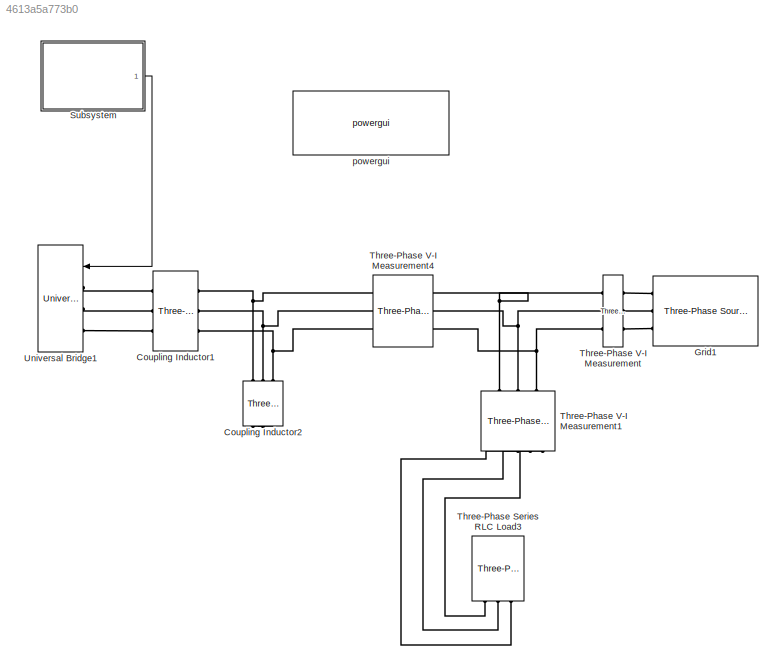
MODEL slx_4613a5a773b0
KIND model
CONFIG AbsTol = auto
CONFIG EnableMultiTasking = off
CONFIG FixedStep = auto
CONFIG MaxStep = 1e-4
CONFIG MinStep = auto
CONFIG RelTol = 1e-3
CONFIG SampleTimeConstraint = Unconstrained
CONFIG Solver = ode45
CONFIG SolverName = ode45
CONFIG StartTime = 0.0
CONFIG StopTime = 3
BLOCK [Reference] Coupling Inductor1  REF=powerlib/Elements/Three-Phase
Series RLC Branch
  AttributesFormatString = \n
  Ports = [0, 0, 0, 0, 0, 3, 3]
  SourceBlock = powerlib/Elements/Three-Phase\nSeries RLC Branch
  SourceProductBaseCode = PS
  SourceProductName = Simscape Electrical
  SourceType = Three-Phase Series RLC Branch
BLOCK [Reference] Coupling Inductor2  REF=powerlib/Elements/Three-Phase
Series RLC Branch
  AttributesFormatString = \n
  Ports = [0, 0, 0, 0, 0, 3, 3]
  SourceBlock = powerlib/Elements/Three-Phase\nSeries RLC Branch
  SourceProductBaseCode = PS
  SourceProductName = Simscape Electrical
  SourceType = Three-Phase Series RLC Branch
BLOCK [Reference] Grid1  REF=powerlib/Electrical
Sources/Three-Phase Source
  Ports = [0, 0, 0, 0, 0, 0, 3]
  SourceBlock = powerlib/Electrical\nSources/Three-Phase Source
  SourceProductBaseCode = PS
  SourceProductName = Simscape Electrical
  SourceType = Three-Phase Source
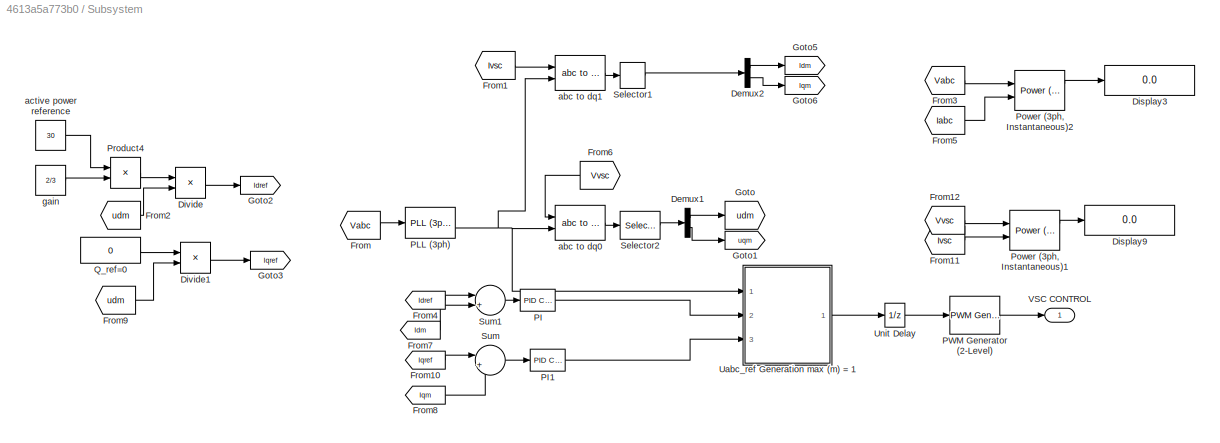
BLOCK [SubSystem] Subsystem
  Ports = [0, 1]
  RequestExecContextInheritance = off
BLOCK [Demux] Subsystem/Demux1
  DisplayOption = bar
  Outputs = 2
  Ports = [1, 2]
BLOCK [Demux] Subsystem/Demux2
  DisplayOption = bar
  Outputs = 2
  Ports = [1, 2]
BLOCK [Display] Subsystem/Display3
  Decimation = 1
  Ports = [1]
BLOCK [Display] Subsystem/Display9
  Decimation = 1
  Ports = [1]
BLOCK [Product] Subsystem/Divide
  InputSameDT = off
  Inputs = */
  OutDataTypeStr = Inherit: Inherit via internal rule
  Ports = [2, 1]
  RndMeth = Floor
  SaturateOnIntegerOverflow = off
BLOCK [Product] Subsystem/Divide1
  InputSameDT = off
  Inputs = */
  OutDataTypeStr = Inherit: Inherit via internal rule
  Ports = [2, 1]
  RndMeth = Floor
  SaturateOnIntegerOverflow = off
BLOCK [From] Subsystem/From
  GotoTag = Vabc
  TagVisibility = global
BLOCK [From] Subsystem/From1
  GotoTag = Ivsc
  TagVisibility = global
BLOCK [From] Subsystem/From10
  GotoTag = Iqref
  TagVisibility = global
BLOCK [From] Subsystem/From11
  GotoTag = Ivsc
  TagVisibility = global
BLOCK [From] Subsystem/From12
  GotoTag = Vvsc
  TagVisibility = global
BLOCK [From] Subsystem/From2
  GotoTag = udm
  TagVisibility = global
BLOCK [From] Subsystem/From3
  GotoTag = Vabc
  TagVisibility = global
BLOCK [From] Subsystem/From4
  GotoTag = Idref
  TagVisibility = global
BLOCK [From] Subsystem/From5
  GotoTag = Iabc
  TagVisibility = global
BLOCK [From] Subsystem/From6
  GotoTag = Vvsc
  TagVisibility = global
BLOCK [From] Subsystem/From7
  GotoTag = Idm
  TagVisibility = global
BLOCK [From] Subsystem/From8
  GotoTag = Iqm
  TagVisibility = global
BLOCK [From] Subsystem/From9
  GotoTag = udm
  TagVisibility = global
BLOCK [Goto] Subsystem/Goto
  GotoTag = udm
  TagVisibility = global
BLOCK [Goto] Subsystem/Goto1
  GotoTag = uqm
  TagVisibility = global
BLOCK [Goto] Subsystem/Goto2
  GotoTag = Idref
  TagVisibility = global
BLOCK [Goto] Subsystem/Goto3
  GotoTag = Iqref
  TagVisibility = global
BLOCK [Goto] Subsystem/Goto5
  GotoTag = Idm
  TagVisibility = global
BLOCK [Goto] Subsystem/Goto6
  GotoTag = Iqm
  TagVisibility = global
BLOCK [Reference] Subsystem/PI  REF=simulink/Continuous/PID Controller
  Ports = [1, 1]
  SourceBlock = simulink/Continuous/PID Controller
  SourceProductBaseCode = SL
  SourceProductName = Simulink
  SourceType = PID 1dof
BLOCK [Reference] Subsystem/PI1  REF=simulink/Continuous/PID Controller
  Ports = [1, 1]
  SourceBlock = simulink/Continuous/PID Controller
  SourceProductBaseCode = SL
  SourceProductName = Simulink
  SourceType = PID 1dof
BLOCK [Reference] Subsystem/PLL (3ph)  REF=powerlib_meascontrol/PLL/PLL
(3ph)
  Ports = [1, 2]
  SourceBlock = powerlib_meascontrol/PLL/PLL\n(3ph)
  SourceProductBaseCode = PS
  SourceProductName = Simscape Electrical
  SourceType = PLL (3ph)
BLOCK [Reference] Subsystem/PWM Generator (2-Level)  REF=powerlib_meascontrol/Pulse & Signal
Generators/PWM Generator
(2-Level)
  Ports = [1, 1]
  SourceBlock = powerlib_meascontrol/Pulse & Signal\nGenerators/PWM Generator\n(2-Level)
  SourceProductBaseCode = PS
  SourceProductName = Simscape Electrical
  SourceType = PWM Generator (2-Level)
BLOCK [Reference] Subsystem/Power (3ph, Instantaneous)1  REF=powerlib_meascontrol/Measurements/Power
(3ph, Instantaneous)
  Ports = [2, 2]
  SourceBlock = powerlib_meascontrol/Measurements/Power\n(3ph, Instantaneous)
  SourceProductBaseCode = PS
  SourceProductName = Simscape Electrical
  SourceType = Power (3ph, Instantaneous)
BLOCK [Reference] Subsystem/Power (3ph, Instantaneous)2  REF=powerlib_meascontrol/Measurements/Power
(3ph, Instantaneous)
  Ports = [2, 2]
  SourceBlock = powerlib_meascontrol/Measurements/Power\n(3ph, Instantaneous)
  SourceProductBaseCode = PS
  SourceProductName = Simscape Electrical
  SourceType = Power (3ph, Instantaneous)
BLOCK [Product] Subsystem/Product4
  InputSameDT = off
  OutDataTypeStr = Inherit: Inherit via internal rule
  Ports = [2, 1]
  RndMeth = Floor
  SaturateOnIntegerOverflow = off
BLOCK [Constant] Subsystem/Q_ref=0
  Value = 0
BLOCK [Selector] Subsystem/Selector1
  IndexOptions = Index vector (dialog)
  Indices = [1 2]
  InputPortWidth = 3
  OutputSizes = 1
  Ports = [1, 1]
BLOCK [Selector] Subsystem/Selector2
  IndexOptions = Index vector (dialog)
  Indices = [1 2]
  InputPortWidth = 3
  OutputSizes = 1
  Ports = [1, 1]
BLOCK [Sum] Subsystem/Sum
  IconShape = round
  InputSameDT = off
  Inputs = |+-
  OutDataTypeStr = Inherit: Inherit via internal rule
  Ports = [2, 1]
  SaturateOnIntegerOverflow = off
BLOCK [Sum] Subsystem/Sum1
  IconShape = round
  InputSameDT = off
  Inputs = |+-
  OutDataTypeStr = Inherit: Inherit via internal rule
  Ports = [2, 1]
  SaturateOnIntegerOverflow = off
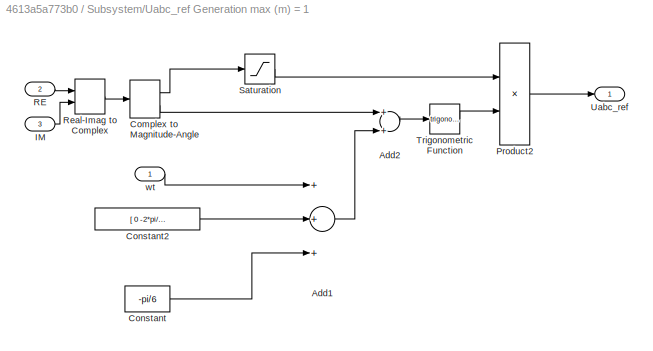
BLOCK [SubSystem] Subsystem/Uabc_ref Generation max (m) = 1
  Ports = [3, 1]
  RequestExecContextInheritance = off
BLOCK [Sum] Subsystem/Uabc_ref Generation max (m) = 1/Add1
  InputSameDT = off
  Inputs = +++
  OutDataTypeStr = Inherit: Inherit via internal rule
  Ports = [3, 1]
  SaturateOnIntegerOverflow = off
BLOCK [Sum] Subsystem/Uabc_ref Generation max (m) = 1/Add2
  InputSameDT = off
  OutDataTypeStr = Inherit: Inherit via internal rule
  Ports = [2, 1]
  SaturateOnIntegerOverflow = off
BLOCK [ComplexToMagnitudeAngle] Subsystem/Uabc_ref Generation max (m) = 1/Complex to Magnitude-Angle
  Ports = [1, 2]
BLOCK [Constant] Subsystem/Uabc_ref Generation max (m) = 1/Constant
  Value = -pi/6
BLOCK [Constant] Subsystem/Uabc_ref Generation max (m) = 1/Constant2
  Value = [ 0  -2*pi/3  2*pi/3  ]
BLOCK [Inport] Subsystem/Uabc_ref Generation max (m) = 1/IM
  IconDisplay = Port number
  Port = 3
BLOCK [Product] Subsystem/Uabc_ref Generation max (m) = 1/Product2
  InputSameDT = off
  Inputs = **
  OutDataTypeStr = Inherit: Inherit via internal rule
  Ports = [2, 1]
  SaturateOnIntegerOverflow = off
BLOCK [Inport] Subsystem/Uabc_ref Generation max (m) = 1/RE
  IconDisplay = Port number
  Port = 2
BLOCK [RealImagToComplex] Subsystem/Uabc_ref Generation max (m) = 1/Real-Imag to Complex
  Ports = [2, 1]
BLOCK [Saturate] Subsystem/Uabc_ref Generation max (m) = 1/Saturation
  InputPortMap = u0
  LowerLimit = 0
  Ports = [1, 1]
  UpperLimit = 1
BLOCK [Trigonometry] Subsystem/Uabc_ref Generation max (m) = 1/Trigonometric Function
  Ports = [1, 1]
BLOCK [Outport] Subsystem/Uabc_ref Generation max (m) = 1/Uabc_ref
  IconDisplay = Port number
  VectorParamsAs1DForOutWhenUnconnected = off
BLOCK [Inport] Subsystem/Uabc_ref Generation max (m) = 1/wt
  IconDisplay = Port number
BLOCK [UnitDelay] Subsystem/Unit Delay
  HasFrameUpgradeWarning = on
  SampleTime = -1
BLOCK [Outport] Subsystem/VSC CONTROL
  IconDisplay = Port number
  VectorParamsAs1DForOutWhenUnconnected = off
BLOCK [Reference] Subsystem/abc to dq0  REF=powerlib_meascontrol/Transformations/abc to dq0
  Ports = [2, 1]
  SourceBlock = powerlib_meascontrol/Transformations/abc to dq0
  SourceProductBaseCode = PS
  SourceProductName = Simscape Electrical
  SourceType = abc to dq0 Transformation
BLOCK [Reference] Subsystem/abc to dq1  REF=powerlib_meascontrol/Transformations/abc to dq0
  Ports = [2, 1]
  SourceBlock = powerlib_meascontrol/Transformations/abc to dq0
  SourceProductBaseCode = PS
  SourceProductName = Simscape Electrical
  SourceType = abc to dq0 Transformation
BLOCK [Constant] Subsystem/active power reference
  Value = 30
BLOCK [Constant] Subsystem/gain
  Value = 2/3
BLOCK [Reference] Three-Phase Series RLC Load3  REF=powerlib/Elements/Three-Phase
Series RLC Load
  AttributesFormatString = \n
  Ports = [0, 0, 0, 0, 0, 3]
  SourceBlock = powerlib/Elements/Three-Phase\nSeries RLC Load
  SourceProductBaseCode = PS
  SourceProductName = Simscape Electrical
  SourceType = Three-Phase Series RLC Load
BLOCK [Reference] Three-Phase V-I Measurement  REF=powerlib/Measurements/Three-Phase
V-I Measurement
  Ports = [0, 0, 0, 0, 0, 3, 3]
  SourceBlock = powerlib/Measurements/Three-Phase\nV-I Measurement
  SourceProductBaseCode = PS
  SourceProductName = Simscape Electrical
  SourceType = Three-Phase VI Measurement
BLOCK [Reference] Three-Phase V-I Measurement1  REF=powerlib/Measurements/Three-Phase
V-I Measurement
  Ports = [0, 2, 0, 0, 0, 3, 3]
  SourceBlock = powerlib/Measurements/Three-Phase\nV-I Measurement
  SourceProductBaseCode = PS
  SourceProductName = Simscape Electrical
  SourceType = Three-Phase VI Measurement
BLOCK [Reference] Three-Phase V-I Measurement4  REF=powerlib/Measurements/Three-Phase
V-I Measurement
  Ports = [0, 0, 0, 0, 0, 3, 3]
  SourceBlock = powerlib/Measurements/Three-Phase\nV-I Measurement
  SourceProductBaseCode = PS
  SourceProductName = Simscape Electrical
  SourceType = Three-Phase VI Measurement
BLOCK [Reference] Universal Bridge1  REF=powerlib/Power
Electronics/Universal Bridge
  Ports = [1, 0, 0, 0, 0, 3, 2]
  SourceBlock = powerlib/Power\nElectronics/Universal Bridge
  SourceProductBaseCode = PS
  SourceProductName = Simscape Electrical
  SourceType = Universal Bridge
BLOCK [Reference] powergui  REF=powerlib/powergui
  Ports = []
  Priority = 1
  SourceBlock = powerlib/powergui
  SourceProductBaseCode = PS
  SourceProductName = Simscape Electrical
  SourceType = PSB option menu block
LINE Subsystem/Demux1:1 -> Subsystem/Goto:1
LINE Subsystem/Demux1:2 -> Subsystem/Goto1:1
LINE Subsystem/Demux2:1 -> Subsystem/Goto5:1
LINE Subsystem/Demux2:2 -> Subsystem/Goto6:1
LINE Subsystem/Divide1:1 -> Subsystem/Goto3:1
LINE Subsystem/Divide:1 -> Subsystem/Goto2:1
LINE Subsystem/From10:1 -> Subsystem/Sum:1
LINE Subsystem/From11:1 -> Subsystem/Power (3ph, Instantaneous)1:2
LINE Subsystem/From12:1 -> Subsystem/Power (3ph, Instantaneous)1:1
LINE Subsystem/From1:1 -> Subsystem/abc to dq1:1
LINE Subsystem/From2:1 -> Subsystem/Divide:2
LINE Subsystem/From3:1 -> Subsystem/Power (3ph, Instantaneous)2:1
LINE Subsystem/From4:1 -> Subsystem/Sum1:1
LINE Subsystem/From5:1 -> Subsystem/Power (3ph, Instantaneous)2:2
LINE Subsystem/From6:1 -> Subsystem/abc to dq0:1
LINE Subsystem/From7:1 -> Subsystem/Sum1:2
LINE Subsystem/From8:1 -> Subsystem/Sum:2
LINE Subsystem/From9:1 -> Subsystem/Divide1:2
LINE Subsystem/From:1 -> Subsystem/PLL (3ph):1
LINE Subsystem/PI1:1 -> Subsystem/Uabc_ref Generation max (m) = 1:3
LINE Subsystem/PI:1 -> Subsystem/Uabc_ref Generation max (m) = 1:2
NET Subsystem/PLL (3ph):2 -> Subsystem/Uabc_ref Generation max (m) = 1:1, Subsystem/abc to dq0:2, Subsystem/abc to dq1:2
LINE Subsystem/PWM Generator (2-Level):1 -> Subsystem/VSC CONTROL:1
LINE Subsystem/Power (3ph, Instantaneous)1:1 -> Subsystem/Display9:1
LINE Subsystem/Power (3ph, Instantaneous)2:1 -> Subsystem/Display3:1
LINE Subsystem/Product4:1 -> Subsystem/Divide:1
LINE Subsystem/Q_ref=0:1 -> Subsystem/Divide1:1
LINE Subsystem/Selector1:1 -> Subsystem/Demux2:1
LINE Subsystem/Selector2:1 -> Subsystem/Demux1:1
LINE Subsystem/Sum1:1 -> Subsystem/PI:1
LINE Subsystem/Sum:1 -> Subsystem/PI1:1
LINE Subsystem/Uabc_ref Generation max (m) = 1/Add1:1 -> Subsystem/Uabc_ref Generation max (m) = 1/Add2:2
LINE Subsystem/Uabc_ref Generation max (m) = 1/Add2:1 -> Subsystem/Uabc_ref Generation max (m) = 1/Trigonometric Function:1
LINE Subsystem/Uabc_ref Generation max (m) = 1/Complex to Magnitude-Angle:1 -> Subsystem/Uabc_ref Generation max (m) = 1/Saturation:1
LINE Subsystem/Uabc_ref Generation max (m) = 1/Complex to Magnitude-Angle:2 -> Subsystem/Uabc_ref Generation max (m) = 1/Add2:1
LINE Subsystem/Uabc_ref Generation max (m) = 1/Constant2:1 -> Subsystem/Uabc_ref Generation max (m) = 1/Add1:2
LINE Subsystem/Uabc_ref Generation max (m) = 1/Constant:1 -> Subsystem/Uabc_ref Generation max (m) = 1/Add1:3
LINE Subsystem/Uabc_ref Generation max (m) = 1/IM:1 -> Subsystem/Uabc_ref Generation max (m) = 1/Real-Imag to Complex:2
LINE Subsystem/Uabc_ref Generation max (m) = 1/Product2:1 -> Subsystem/Uabc_ref Generation max (m) = 1/Uabc_ref:1
LINE Subsystem/Uabc_ref Generation max (m) = 1/RE:1 -> Subsystem/Uabc_ref Generation max (m) = 1/Real-Imag to Complex:1
LINE Subsystem/Uabc_ref Generation max (m) = 1/Real-Imag to Complex:1 -> Subsystem/Uabc_ref Generation max (m) = 1/Complex to Magnitude-Angle:1
LINE Subsystem/Uabc_ref Generation max (m) = 1/Saturation:1 -> Subsystem/Uabc_ref Generation max (m) = 1/Product2:1
LINE Subsystem/Uabc_ref Generation max (m) = 1/Trigonometric Function:1 -> Subsystem/Uabc_ref Generation max (m) = 1/Product2:2
LINE Subsystem/Uabc_ref Generation max (m) = 1/wt:1 -> Subsystem/Uabc_ref Generation max (m) = 1/Add1:1
LINE Subsystem/Uabc_ref Generation max (m) = 1:1 -> Subsystem/Unit Delay:1
LINE Subsystem/Unit Delay:1 -> Subsystem/PWM Generator (2-Level):1
LINE Subsystem/abc to dq0:1 -> Subsystem/Selector2:1
LINE Subsystem/abc to dq1:1 -> Subsystem/Selector1:1
LINE Subsystem/active power reference:1 -> Subsystem/Product4:1
LINE Subsystem/gain:1 -> Subsystem/Product4:2
LINE Subsystem:1 -> Universal Bridge1:1
PNET net1: Coupling Inductor1:LConn1 -- Coupling Inductor2:LConn1 -- Three-Phase V-I Measurement4:LConn1
PNET net2: Coupling Inductor1:LConn2 -- Coupling Inductor2:LConn2 -- Three-Phase V-I Measurement4:LConn2
PNET net3: Coupling Inductor1:LConn3 -- Coupling Inductor2:LConn3 -- Three-Phase V-I Measurement4:LConn3
PLINE Coupling Inductor1:RConn1 -- Universal Bridge1:LConn1
PLINE Coupling Inductor1:RConn2 -- Universal Bridge1:LConn2
PLINE Coupling Inductor1:RConn3 -- Universal Bridge1:LConn3
PNET net4: Coupling Inductor2:RConn1 -- Coupling Inductor2:RConn2 -- Coupling Inductor2:RConn3
PLINE Grid1:RConn1 -- Three-Phase V-I Measurement:RConn1
PLINE Grid1:RConn2 -- Three-Phase V-I Measurement:RConn2
PLINE Grid1:RConn3 -- Three-Phase V-I Measurement:RConn3
PLINE Three-Phase Series RLC Load3:LConn1 -- Three-Phase V-I Measurement1:RConn1
PLINE Three-Phase Series RLC Load3:LConn2 -- Three-Phase V-I Measurement1:RConn2
PLINE Three-Phase Series RLC Load3:LConn3 -- Three-Phase V-I Measurement1:RConn3
PNET net5: Three-Phase V-I Measurement1:LConn1 -- Three-Phase V-I Measurement4:RConn1 -- Three-Phase V-I Measurement:LConn1
PNET net6: Three-Phase V-I Measurement1:LConn2 -- Three-Phase V-I Measurement4:RConn2 -- Three-Phase V-I Measurement:LConn2
PNET net7: Three-Phase V-I Measurement1:LConn3 -- Three-Phase V-I Measurement4:RConn3 -- Three-Phase V-I Measurement:LConn3
note: NET lines group one-source signal fan-out (src -> all destinations, sorted); 1:1 wires keep LINE; PNET lines group multi-terminal physical nets as a canonical sorted terminal list (undirected conserving connections); 2-terminal nets keep the pairwise PLINE form
